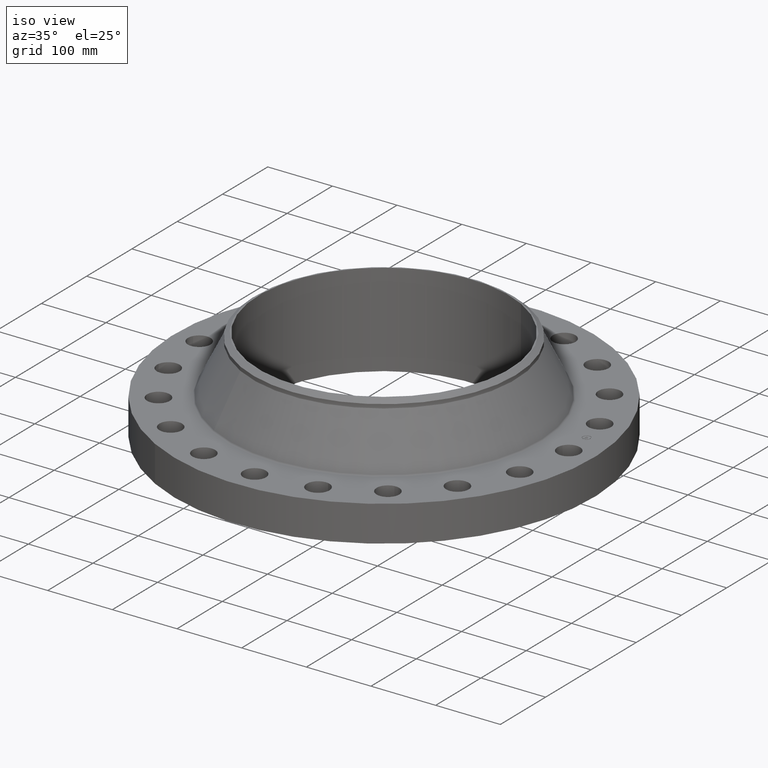
[diagram: clean part render]
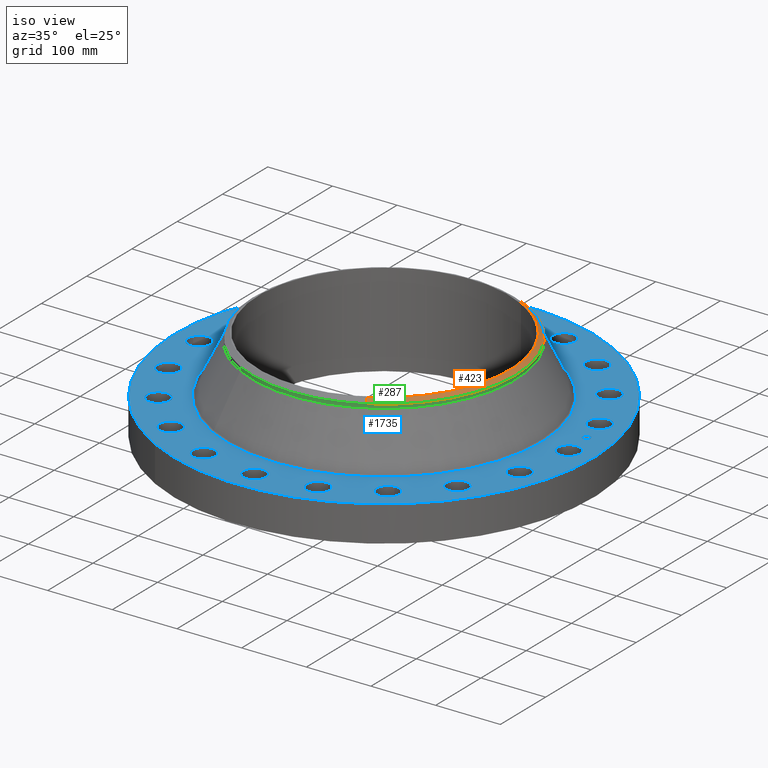
[diagram: same view with three faces highlighted in distinct colors, each labeled with its STEP entity id]
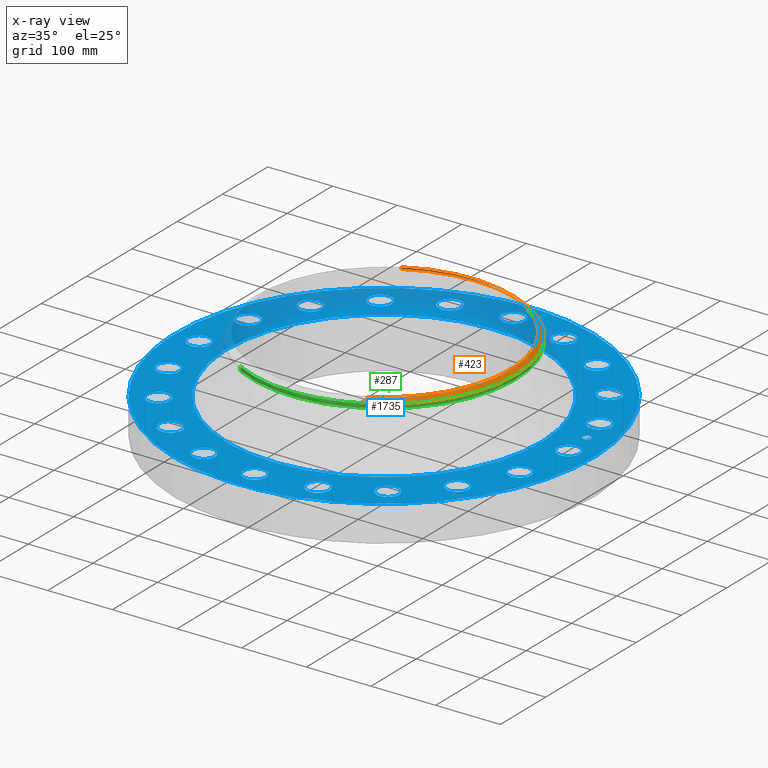
[diagram: x-ray of the same camera — body ghosted, the three highlighted faces saturated]
A machine part, iso view with three faces highlighted in distinct colors.
The next image is the same camera in x-ray (body ghosted, the three faces saturated) — at least one of them is partly hidden behind the body in this view.
Their STEP definitions:

[orange] entity #423 — the highlighted conical surface has half-angle 52.5 deg.
#270=AXIS2_PLACEMENT_3D('Circle Axis2P3D',#268,#269,$) ;
#297=AXIS2_PLACEMENT_3D('Circle Axis2P3D',#295,#296,$) ;
#311=AXIS2_PLACEMENT_3D('Cone Axis2P3D',#308,#309,#310) ;
#404=AXIS2_PLACEMENT_3D('Circle Axis2P3D',#402,#403,$) ;
#265=CARTESIAN_POINT('Vertex',(3.83540430885,7.02066049515,5.4626718274)) ;
#268=CARTESIAN_POINT('Axis2P3D Location',(0.,0.,5.4626718274)) ;
#272=CARTESIAN_POINT('Vertex',(3.83540430885,-7.02066049515,5.4626718274)) ;
#292=CARTESIAN_POINT('Vertex',(-3.83540430885,7.02066049515,5.4626718274)) ;
#295=CARTESIAN_POINT('Axis2P3D Location',(0.,0.,5.4626718274)) ;
#308=CARTESIAN_POINT('Axis2P3D Location',(0.,0.,5.69000000002)) ;
#313=CARTESIAN_POINT('Line Origine',(3.76438704157,-6.89066425936,5.57633591371)) ;
#317=CARTESIAN_POINT('Vertex',(3.69336977428,-6.76066802357,5.69000000002)) ;
#324=CARTESIAN_POINT('Vertex',(-3.69336977428,6.76066802357,5.69000000002)) ;
#327=CARTESIAN_POINT('Line Origine',(-3.76438704157,6.89066425936,5.57633591371)) ;
#402=CARTESIAN_POINT('Axis2P3D Location',(0.,0.,5.69000000002)) ;
#269=DIRECTION('Axis2P3D Direction',(0.,0.,-0.0393700787402)) ;
#296=DIRECTION('Axis2P3D Direction',(0.,0.,-0.0393700787402)) ;
#309=DIRECTION('Axis2P3D Direction',(-0.,-0.,-0.0393700787402)) ;
#310=DIRECTION('Axis2P3D XDirection',(-0.0188750212049,0.0345504945626,0.)) ;
#314=DIRECTION('Vector Direction',(0.014974561121,-0.02741075027,-0.023966985394)) ;
#328=DIRECTION('Vector Direction',(-0.014974561121,0.02741075027,-0.023966985394)) ;
#403=DIRECTION('Axis2P3D Direction',(0.,0.,-0.0393700787402)) ;
#315=VECTOR('Line Direction',#314,0.0393700787402) ;
#329=VECTOR('Line Direction',#328,0.0393700787402) ;
#417=ORIENTED_EDGE('',*,*,#331,.F.) ;
#418=ORIENTED_EDGE('',*,*,#406,.F.) ;
#419=ORIENTED_EDGE('',*,*,#319,.T.) ;
#420=ORIENTED_EDGE('',*,*,#274,.T.) ;
#421=ORIENTED_EDGE('',*,*,#299,.F.) ;
#423=ADVANCED_FACE('PartBody',(#422),#312,.T.) ;
#271=CIRCLE('generated circle',#270,8.00000000003) ;
#298=CIRCLE('generated circle',#297,8.00000000003) ;
#405=CIRCLE('generated circle',#404,7.70374015751) ;
#312=CONICAL_SURFACE('Cone',#311,7.70374015751,0.916297857297) ;
#274=EDGE_CURVE('',#273,#266,#271,.F.) ;
#299=EDGE_CURVE('',#293,#266,#298,.T.) ;
#319=EDGE_CURVE('',#318,#273,#316,.T.) ;
#331=EDGE_CURVE('',#325,#293,#330,.T.) ;
#406=EDGE_CURVE('',#318,#325,#405,.F.) ;
#416=EDGE_LOOP('',(#417,#418,#419,#420,#421)) ;
#422=FACE_OUTER_BOUND('',#416,.T.) ;
#316=LINE('Line',#313,#315) ;
#330=LINE('Line',#327,#329) ;
#266=VERTEX_POINT('',#265) ;
#273=VERTEX_POINT('',#272) ;
#293=VERTEX_POINT('',#292) ;
#318=VERTEX_POINT('',#317) ;
#325=VERTEX_POINT('',#324) ;

[blue] entity #1735 — the highlighted planar face has unit normal (0, 0, -1).
#65=AXIS2_PLACEMENT_3D('Circle Axis2P3D',#63,#64,$) ;
#82=AXIS2_PLACEMENT_3D('Circle Axis2P3D',#80,#81,$) ;
#115=AXIS2_PLACEMENT_3D('Circle Axis2P3D',#113,#114,$) ;
#139=AXIS2_PLACEMENT_3D('Circle Axis2P3D',#137,#138,$) ;
#156=AXIS2_PLACEMENT_3D('Circle Axis2P3D',#154,#155,$) ;
#191=AXIS2_PLACEMENT_3D('Circle Axis2P3D',#189,#190,$) ;
#828=AXIS2_PLACEMENT_3D('Circle Axis2P3D',#826,#827,$) ;
#840=AXIS2_PLACEMENT_3D('Circle Axis2P3D',#838,#839,$) ;
#871=AXIS2_PLACEMENT_3D('Circle Axis2P3D',#869,#870,$) ;
#883=AXIS2_PLACEMENT_3D('Circle Axis2P3D',#881,#882,$) ;
#914=AXIS2_PLACEMENT_3D('Circle Axis2P3D',#912,#913,$) ;
#926=AXIS2_PLACEMENT_3D('Circle Axis2P3D',#924,#925,$) ;
#957=AXIS2_PLACEMENT_3D('Circle Axis2P3D',#955,#956,$) ;
#969=AXIS2_PLACEMENT_3D('Circle Axis2P3D',#967,#968,$) ;
#1000=AXIS2_PLACEMENT_3D('Circle Axis2P3D',#998,#999,$) ;
#1012=AXIS2_PLACEMENT_3D('Circle Axis2P3D',#1010,#1011,$) ;
#1043=AXIS2_PLACEMENT_3D('Circle Axis2P3D',#1041,#1042,$) ;
#1055=AXIS2_PLACEMENT_3D('Circle Axis2P3D',#1053,#1054,$) ;
#1086=AXIS2_PLACEMENT_3D('Circle Axis2P3D',#1084,#1085,$) ;
#1098=AXIS2_PLACEMENT_3D('Circle Axis2P3D',#1096,#1097,$) ;
#1129=AXIS2_PLACEMENT_3D('Circle Axis2P3D',#1127,#1128,$) ;
#1141=AXIS2_PLACEMENT_3D('Circle Axis2P3D',#1139,#1140,$) ;
#1172=AXIS2_PLACEMENT_3D('Circle Axis2P3D',#1170,#1171,$) ;
#1184=AXIS2_PLACEMENT_3D('Circle Axis2P3D',#1182,#1183,$) ;
#1215=AXIS2_PLACEMENT_3D('Circle Axis2P3D',#1213,#1214,$) ;
#1227=AXIS2_PLACEMENT_3D('Circle Axis2P3D',#1225,#1226,$) ;
#1258=AXIS2_PLACEMENT_3D('Circle Axis2P3D',#1256,#1257,$) ;
#1270=AXIS2_PLACEMENT_3D('Circle Axis2P3D',#1268,#1269,$) ;
#1301=AXIS2_PLACEMENT_3D('Circle Axis2P3D',#1299,#1300,$) ;
#1313=AXIS2_PLACEMENT_3D('Circle Axis2P3D',#1311,#1312,$) ;
#1344=AXIS2_PLACEMENT_3D('Circle Axis2P3D',#1342,#1343,$) ;
#1356=AXIS2_PLACEMENT_3D('Circle Axis2P3D',#1354,#1355,$) ;
#1387=AXIS2_PLACEMENT_3D('Circle Axis2P3D',#1385,#1386,$) ;
#1399=AXIS2_PLACEMENT_3D('Circle Axis2P3D',#1397,#1398,$) ;
#1430=AXIS2_PLACEMENT_3D('Circle Axis2P3D',#1428,#1429,$) ;
#1442=AXIS2_PLACEMENT_3D('Circle Axis2P3D',#1440,#1441,$) ;
#1473=AXIS2_PLACEMENT_3D('Circle Axis2P3D',#1471,#1472,$) ;
#1485=AXIS2_PLACEMENT_3D('Circle Axis2P3D',#1483,#1484,$) ;
#1516=AXIS2_PLACEMENT_3D('Circle Axis2P3D',#1514,#1515,$) ;
#1528=AXIS2_PLACEMENT_3D('Circle Axis2P3D',#1526,#1527,$) ;
#1559=AXIS2_PLACEMENT_3D('Circle Axis2P3D',#1557,#1558,$) ;
#1571=AXIS2_PLACEMENT_3D('Circle Axis2P3D',#1569,#1570,$) ;
#1602=AXIS2_PLACEMENT_3D('Circle Axis2P3D',#1600,#1601,$) ;
#1614=AXIS2_PLACEMENT_3D('Circle Axis2P3D',#1612,#1613,$) ;
#1627=AXIS2_PLACEMENT_3D('Plane Axis2P3D',#1624,#1625,#1626) ;
#1719=AXIS2_PLACEMENT_3D('Circle Axis2P3D',#1717,#1718,$) ;
#1728=AXIS2_PLACEMENT_3D('Circle Axis2P3D',#1726,#1727,$) ;
#46=CARTESIAN_POINT('Vertex',(10.6444680323,0.330803621638,2.19000000001)) ;
#60=CARTESIAN_POINT('Vertex',(11.8555319678,-0.330803621638,2.19000000001)) ;
#63=CARTESIAN_POINT('Axis2P3D Location',(11.25,0.,2.19000000001)) ;
#80=CARTESIAN_POINT('Axis2P3D Location',(11.25,0.,2.19000000001)) ;
#110=CARTESIAN_POINT('Vertex',(-6.11267561723,-11.1891776641,2.19000000001)) ;
#113=CARTESIAN_POINT('Axis2P3D Location',(0.,0.,2.19000000001)) ;
#117=CARTESIAN_POINT('Vertex',(6.11267561723,11.1891776641,2.19000000001)) ;
#137=CARTESIAN_POINT('Axis2P3D Location',(0.,0.,2.19000000001)) ;
#154=CARTESIAN_POINT('Axis2P3D Location',(0.,0.,2.19000000001)) ;
#158=CARTESIAN_POINT('Vertex',(4.59029040078,8.40247021772,2.19000000001)) ;
#160=CARTESIAN_POINT('Vertex',(-4.59029040078,-8.40247021772,2.19000000001)) ;
#189=CARTESIAN_POINT('Axis2P3D Location',(0.,0.,2.19000000001)) ;
#816=CARTESIAN_POINT('Vertex',(-10.2257146255,2.9747085781,2.19000000001)) ;
#823=CARTESIAN_POINT('Vertex',(-11.1730569912,3.97817379536,2.19000000001)) ;
#826=CARTESIAN_POINT('Axis2P3D Location',(-10.6993858084,3.47644118673,2.19000000001)) ;
#838=CARTESIAN_POINT('Axis2P3D Location',(-10.6993858084,3.47644118673,2.19000000001)) ;
#859=CARTESIAN_POINT('Vertex',(8.80599702445,-5.9890355762,2.19000000001)) ;
#866=CARTESIAN_POINT('Vertex',(9.39688534906,-7.23613260043,2.19000000001)) ;
#869=CARTESIAN_POINT('Axis2P3D Location',(9.10144118675,-6.61258408832,2.19000000001)) ;
#881=CARTESIAN_POINT('Axis2P3D Location',(9.10144118675,-6.61258408832,2.19000000001)) ;
#902=CARTESIAN_POINT('Vertex',(-8.80599702445,5.9890355762,2.19000000001)) ;
#909=CARTESIAN_POINT('Vertex',(-9.39688534906,7.23613260043,2.19000000001)) ;
#912=CARTESIAN_POINT('Axis2P3D Location',(-9.10144118675,6.61258408832,2.19000000001)) ;
#924=CARTESIAN_POINT('Axis2P3D Location',(-9.10144118675,6.61258408832,2.19000000001)) ;
#945=CARTESIAN_POINT('Vertex',(6.52428707961,-8.41711404404,2.19000000001)) ;
#952=CARTESIAN_POINT('Vertex',(6.70088109702,-9.78576832947,2.19000000001)) ;
#955=CARTESIAN_POINT('Axis2P3D Location',(6.61258408832,-9.10144118675,2.19000000001)) ;
#967=CARTESIAN_POINT('Axis2P3D Location',(6.61258408832,-9.10144118675,2.19000000001)) ;
#988=CARTESIAN_POINT('Vertex',(-6.52428707961,8.41711404404,2.19000000001)) ;
#995=CARTESIAN_POINT('Vertex',(-6.70088109702,9.78576832947,2.19000000001)) ;
#998=CARTESIAN_POINT('Axis2P3D Location',(-6.61258408832,9.10144118675,2.19000000001)) ;
#1010=CARTESIAN_POINT('Axis2P3D Location',(-6.61258408832,9.10144118675,2.19000000001)) ;
#1031=CARTESIAN_POINT('Vertex',(3.60393445805,-10.0212667438,2.19000000001)) ;
#1038=CARTESIAN_POINT('Vertex',(3.34894791542,-11.377504873,2.19000000001)) ;
#1041=CARTESIAN_POINT('Axis2P3D Location',(3.47644118673,-10.6993858084,2.19000000001)) ;
#1053=CARTESIAN_POINT('Axis2P3D Location',(3.47644118673,-10.6993858084,2.19000000001)) ;
#1074=CARTESIAN_POINT('Vertex',(-3.60393445805,10.0212667438,2.19000000001)) ;
#1081=CARTESIAN_POINT('Vertex',(-3.34894791542,11.377504873,2.19000000001)) ;
#1084=CARTESIAN_POINT('Axis2P3D Location',(-3.47644118673,10.6993858084,2.19000000001)) ;
#1096=CARTESIAN_POINT('Axis2P3D Location',(-3.47644118673,10.6993858084,2.19000000001)) ;
#1117=CARTESIAN_POINT('Vertex',(0.330803621638,-10.6444680323,2.19000000001)) ;
#1124=CARTESIAN_POINT('Vertex',(-0.330803621638,-11.8555319678,2.19000000001)) ;
#1127=CARTESIAN_POINT('Axis2P3D Location',(9.4893575353E-016,-11.25,2.19000000001)) ;
#1139=CARTESIAN_POINT('Axis2P3D Location',(9.4893575353E-016,-11.25,2.19000000001)) ;
#1160=CARTESIAN_POINT('Vertex',(-0.330803621638,10.6444680323,2.19000000001)) ;
#1167=CARTESIAN_POINT('Vertex',(0.330803621638,11.8555319678,2.19000000001)) ;
#1170=CARTESIAN_POINT('Axis2P3D Location',(-9.82066881883E-015,11.25,2.19000000001)) ;
#1182=CARTESIAN_POINT('Axis2P3D Location',(-9.82066881883E-015,11.25,2.19000000001)) ;
#1203=CARTESIAN_POINT('Vertex',(-2.9747085781,-10.2257146255,2.19000000001)) ;
#1210=CARTESIAN_POINT('Vertex',(-3.97817379536,-11.1730569912,2.19000000001)) ;
#1213=CARTESIAN_POINT('Axis2P3D Location',(-3.47644118673,-10.6993858084,2.19000000001)) ;
#1225=CARTESIAN_POINT('Axis2P3D Location',(-3.47644118673,-10.6993858084,2.19000000001)) ;
#1246=CARTESIAN_POINT('Vertex',(2.9747085781,10.2257146255,2.19000000001)) ;
#1253=CARTESIAN_POINT('Vertex',(3.97817379536,11.1730569912,2.19000000001)) ;
#1256=CARTESIAN_POINT('Axis2P3D Location',(3.47644118673,10.6993858084,2.19000000001)) ;
#1268=CARTESIAN_POINT('Axis2P3D Location',(3.47644118673,10.6993858084,2.19000000001)) ;
#1289=CARTESIAN_POINT('Vertex',(-5.9890355762,-8.80599702445,2.19000000001)) ;
#1296=CARTESIAN_POINT('Vertex',(-7.23613260043,-9.39688534906,2.19000000001)) ;
#1299=CARTESIAN_POINT('Axis2P3D Location',(-6.61258408832,-9.10144118675,2.19000000001)) ;
#1311=CARTESIAN_POINT('Axis2P3D Location',(-6.61258408832,-9.10144118675,2.19000000001)) ;
#1332=CARTESIAN_POINT('Vertex',(5.9890355762,8.80599702445,2.19000000001)) ;
#1339=CARTESIAN_POINT('Vertex',(7.23613260043,9.39688534906,2.19000000001)) ;
#1342=CARTESIAN_POINT('Axis2P3D Location',(6.61258408832,9.10144118675,2.19000000001)) ;
#1354=CARTESIAN_POINT('Axis2P3D Location',(6.61258408832,9.10144118675,2.19000000001)) ;
#1375=CARTESIAN_POINT('Vertex',(-8.41711404404,-6.52428707961,2.19000000001)) ;
#1382=CARTESIAN_POINT('Vertex',(-9.78576832947,-6.70088109702,2.19000000001)) ;
#1385=CARTESIAN_POINT('Axis2P3D Location',(-9.10144118675,-6.61258408832,2.19000000001)) ;
#1397=CARTESIAN_POINT('Axis2P3D Location',(-9.10144118675,-6.61258408832,2.19000000001)) ;
#1418=CARTESIAN_POINT('Vertex',(8.41711404404,6.52428707961,2.19000000001)) ;
#1425=CARTESIAN_POINT('Vertex',(9.78576832947,6.70088109702,2.19000000001)) ;
#1428=CARTESIAN_POINT('Axis2P3D Location',(9.10144118675,6.61258408832,2.19000000001)) ;
#1440=CARTESIAN_POINT('Axis2P3D Location',(9.10144118675,6.61258408832,2.19000000001)) ;
#1461=CARTESIAN_POINT('Vertex',(-10.0212667438,-3.60393445805,2.19000000001)) ;
#1468=CARTESIAN_POINT('Vertex',(-11.377504873,-3.34894791542,2.19000000001)) ;
#1471=CARTESIAN_POINT('Axis2P3D Location',(-10.6993858084,-3.47644118673,2.19000000001)) ;
#1483=CARTESIAN_POINT('Axis2P3D Location',(-10.6993858084,-3.47644118673,2.19000000001)) ;
#1504=CARTESIAN_POINT('Vertex',(10.0212667438,3.60393445805,2.19000000001)) ;
#1511=CARTESIAN_POINT('Vertex',(11.377504873,3.34894791542,2.19000000001)) ;
#1514=CARTESIAN_POINT('Axis2P3D Location',(10.6993858084,3.47644118673,2.19000000001)) ;
#1526=CARTESIAN_POINT('Axis2P3D Location',(10.6993858084,3.47644118673,2.19000000001)) ;
#1547=CARTESIAN_POINT('Vertex',(-10.6444680323,-0.330803621638,2.19000000001)) ;
#1554=CARTESIAN_POINT('Vertex',(-11.8555319678,0.330803621638,2.19000000001)) ;
#1557=CARTESIAN_POINT('Axis2P3D Location',(-11.25,-6.37373125988E-015,2.19000000001)) ;
#1569=CARTESIAN_POINT('Axis2P3D Location',(-11.25,-6.37373125988E-015,2.19000000001)) ;
#1590=CARTESIAN_POINT('Vertex',(10.2257146255,-2.9747085781,2.19000000001)) ;
#1597=CARTESIAN_POINT('Vertex',(11.1730569912,-3.97817379536,2.19000000001)) ;
#1600=CARTESIAN_POINT('Axis2P3D Location',(10.6993858084,-3.47644118673,2.19000000001)) ;
#1612=CARTESIAN_POINT('Axis2P3D Location',(10.6993858084,-3.47644118673,2.19000000001)) ;
#1624=CARTESIAN_POINT('Axis2P3D Location',(0.,12.7500000001,2.19000000001)) ;
#1717=CARTESIAN_POINT('Axis2P3D Location',(11.1114938317,1.75988773171,2.19000000001)) ;
#1721=CARTESIAN_POINT('Vertex',(11.0727763016,2.00434059601,2.19000000001)) ;
#1723=CARTESIAN_POINT('Vertex',(11.1502113618,1.51543486741,2.19000000001)) ;
#1726=CARTESIAN_POINT('Axis2P3D Location',(11.1114938317,1.75988773171,2.19000000001)) ;
#64=DIRECTION('Axis2P3D Direction',(0.,-0.,-0.0393700787402)) ;
#81=DIRECTION('Axis2P3D Direction',(0.,-0.,-0.0393700787402)) ;
#114=DIRECTION('Axis2P3D Direction',(0.,0.,-0.0393700787402)) ;
#138=DIRECTION('Axis2P3D Direction',(0.,0.,-0.0393700787402)) ;
#155=DIRECTION('Axis2P3D Direction',(0.,0.,-0.0393700787402)) ;
#190=DIRECTION('Axis2P3D Direction',(0.,0.,-0.0393700787402)) ;
#827=DIRECTION('Axis2P3D Direction',(0.,0.,-0.0393700787402)) ;
#839=DIRECTION('Axis2P3D Direction',(0.,0.,-0.0393700787402)) ;
#870=DIRECTION('Axis2P3D Direction',(0.,-0.,-0.0393700787402)) ;
#882=DIRECTION('Axis2P3D Direction',(0.,-0.,-0.0393700787402)) ;
#913=DIRECTION('Axis2P3D Direction',(0.,0.,-0.0393700787402)) ;
#925=DIRECTION('Axis2P3D Direction',(0.,0.,-0.0393700787402)) ;
#956=DIRECTION('Axis2P3D Direction',(0.,-0.,-0.0393700787402)) ;
#968=DIRECTION('Axis2P3D Direction',(0.,-0.,-0.0393700787402)) ;
#999=DIRECTION('Axis2P3D Direction',(0.,0.,-0.0393700787402)) ;
#1011=DIRECTION('Axis2P3D Direction',(0.,0.,-0.0393700787402)) ;
#1042=DIRECTION('Axis2P3D Direction',(0.,-0.,-0.0393700787402)) ;
#1054=DIRECTION('Axis2P3D Direction',(0.,-0.,-0.0393700787402)) ;
#1085=DIRECTION('Axis2P3D Direction',(0.,0.,-0.0393700787402)) ;
#1097=DIRECTION('Axis2P3D Direction',(0.,0.,-0.0393700787402)) ;
#1128=DIRECTION('Axis2P3D Direction',(0.,-0.,-0.0393700787402)) ;
#1140=DIRECTION('Axis2P3D Direction',(0.,-0.,-0.0393700787402)) ;
#1171=DIRECTION('Axis2P3D Direction',(0.,0.,-0.0393700787402)) ;
#1183=DIRECTION('Axis2P3D Direction',(0.,0.,-0.0393700787402)) ;
#1214=DIRECTION('Axis2P3D Direction',(-0.,0.,-0.0393700787402)) ;
#1226=DIRECTION('Axis2P3D Direction',(-0.,0.,-0.0393700787402)) ;
#1257=DIRECTION('Axis2P3D Direction',(0.,0.,-0.0393700787402)) ;
#1269=DIRECTION('Axis2P3D Direction',(0.,0.,-0.0393700787402)) ;
#1300=DIRECTION('Axis2P3D Direction',(-0.,0.,-0.0393700787402)) ;
#1312=DIRECTION('Axis2P3D Direction',(-0.,0.,-0.0393700787402)) ;
#1343=DIRECTION('Axis2P3D Direction',(0.,0.,-0.0393700787402)) ;
#1355=DIRECTION('Axis2P3D Direction',(0.,0.,-0.0393700787402)) ;
#1386=DIRECTION('Axis2P3D Direction',(-0.,0.,-0.0393700787402)) ;
#1398=DIRECTION('Axis2P3D Direction',(-0.,0.,-0.0393700787402)) ;
#1429=DIRECTION('Axis2P3D Direction',(0.,0.,-0.0393700787402)) ;
#1441=DIRECTION('Axis2P3D Direction',(0.,0.,-0.0393700787402)) ;
#1472=DIRECTION('Axis2P3D Direction',(-0.,0.,-0.0393700787402)) ;
#1484=DIRECTION('Axis2P3D Direction',(-0.,0.,-0.0393700787402)) ;
#1515=DIRECTION('Axis2P3D Direction',(0.,0.,-0.0393700787402)) ;
#1527=DIRECTION('Axis2P3D Direction',(0.,0.,-0.0393700787402)) ;
#1558=DIRECTION('Axis2P3D Direction',(-0.,0.,-0.0393700787402)) ;
#1570=DIRECTION('Axis2P3D Direction',(-0.,0.,-0.0393700787402)) ;
#1601=DIRECTION('Axis2P3D Direction',(0.,-0.,-0.0393700787402)) ;
#1613=DIRECTION('Axis2P3D Direction',(0.,-0.,-0.0393700787402)) ;
#1625=DIRECTION('Axis2P3D Direction',(0.,0.,-0.0393700787402)) ;
#1626=DIRECTION('Axis2P3D XDirection',(0.0393700787402,0.,0.)) ;
#1718=DIRECTION('Axis2P3D Direction',(0.,0.,-0.0393700787402)) ;
#1727=DIRECTION('Axis2P3D Direction',(0.,0.,-0.0393700787402)) ;
#1630=ORIENTED_EDGE('',*,*,#141,.F.) ;
#1631=ORIENTED_EDGE('',*,*,#119,.F.) ;
#1634=ORIENTED_EDGE('',*,*,#67,.T.) ;
#1635=ORIENTED_EDGE('',*,*,#84,.T.) ;
#1638=ORIENTED_EDGE('',*,*,#193,.T.) ;
#1639=ORIENTED_EDGE('',*,*,#162,.T.) ;
#1642=ORIENTED_EDGE('',*,*,#1616,.T.) ;
#1643=ORIENTED_EDGE('',*,*,#1604,.T.) ;
#1646=ORIENTED_EDGE('',*,*,#885,.T.) ;
#1647=ORIENTED_EDGE('',*,*,#873,.T.) ;
#1650=ORIENTED_EDGE('',*,*,#971,.T.) ;
#1651=ORIENTED_EDGE('',*,*,#959,.T.) ;
#1654=ORIENTED_EDGE('',*,*,#1057,.T.) ;
#1655=ORIENTED_EDGE('',*,*,#1045,.T.) ;
#1658=ORIENTED_EDGE('',*,*,#1143,.T.) ;
#1659=ORIENTED_EDGE('',*,*,#1131,.T.) ;
#1662=ORIENTED_EDGE('',*,*,#1229,.T.) ;
#1663=ORIENTED_EDGE('',*,*,#1217,.T.) ;
#1666=ORIENTED_EDGE('',*,*,#1315,.T.) ;
#1667=ORIENTED_EDGE('',*,*,#1303,.T.) ;
#1670=ORIENTED_EDGE('',*,*,#1401,.T.) ;
#1671=ORIENTED_EDGE('',*,*,#1389,.T.) ;
#1674=ORIENTED_EDGE('',*,*,#1487,.T.) ;
#1675=ORIENTED_EDGE('',*,*,#1475,.T.) ;
#1678=ORIENTED_EDGE('',*,*,#1573,.T.) ;
#1679=ORIENTED_EDGE('',*,*,#1561,.T.) ;
#1682=ORIENTED_EDGE('',*,*,#842,.T.) ;
#1683=ORIENTED_EDGE('',*,*,#830,.T.) ;
#1686=ORIENTED_EDGE('',*,*,#928,.T.) ;
#1687=ORIENTED_EDGE('',*,*,#916,.T.) ;
#1690=ORIENTED_EDGE('',*,*,#1014,.T.) ;
#1691=ORIENTED_EDGE('',*,*,#1002,.T.) ;
#1694=ORIENTED_EDGE('',*,*,#1100,.T.) ;
#1695=ORIENTED_EDGE('',*,*,#1088,.T.) ;
#1698=ORIENTED_EDGE('',*,*,#1186,.T.) ;
#1699=ORIENTED_EDGE('',*,*,#1174,.T.) ;
#1702=ORIENTED_EDGE('',*,*,#1272,.T.) ;
#1703=ORIENTED_EDGE('',*,*,#1260,.T.) ;
#1706=ORIENTED_EDGE('',*,*,#1358,.T.) ;
#1707=ORIENTED_EDGE('',*,*,#1346,.T.) ;
#1710=ORIENTED_EDGE('',*,*,#1444,.T.) ;
#1711=ORIENTED_EDGE('',*,*,#1432,.T.) ;
#1714=ORIENTED_EDGE('',*,*,#1530,.T.) ;
#1715=ORIENTED_EDGE('',*,*,#1518,.T.) ;
#1732=ORIENTED_EDGE('',*,*,#1725,.T.) ;
#1733=ORIENTED_EDGE('',*,*,#1730,.T.) ;
#1636=FACE_BOUND('',#1633,.T.) ;
#1640=FACE_BOUND('',#1637,.T.) ;
#1644=FACE_BOUND('',#1641,.T.) ;
#1648=FACE_BOUND('',#1645,.T.) ;
#1652=FACE_BOUND('',#1649,.T.) ;
#1656=FACE_BOUND('',#1653,.T.) ;
#1660=FACE_BOUND('',#1657,.T.) ;
#1664=FACE_BOUND('',#1661,.T.) ;
#1668=FACE_BOUND('',#1665,.T.) ;
#1672=FACE_BOUND('',#1669,.T.) ;
#1676=FACE_BOUND('',#1673,.T.) ;
#1680=FACE_BOUND('',#1677,.T.) ;
#1684=FACE_BOUND('',#1681,.T.) ;
#1688=FACE_BOUND('',#1685,.T.) ;
#1692=FACE_BOUND('',#1689,.T.) ;
#1696=FACE_BOUND('',#1693,.T.) ;
#1700=FACE_BOUND('',#1697,.T.) ;
#1704=FACE_BOUND('',#1701,.T.) ;
#1708=FACE_BOUND('',#1705,.T.) ;
#1712=FACE_BOUND('',#1709,.T.) ;
#1716=FACE_BOUND('',#1713,.T.) ;
#1734=FACE_BOUND('',#1731,.T.) ;
#1735=ADVANCED_FACE('PartBody',(#1632,#1636,#1640,#1644,#1648,#1652,#1656,#1660,#1664,#1668,#1672,#1676,#1680,#1684,#1688,#1692,#1696,#1700,#1704,#1708,#1712,#1716,#1734),#1628,.F.) ;
#66=CIRCLE('generated circle',#65,0.690000000003) ;
#83=CIRCLE('generated circle',#82,0.690000000003) ;
#116=CIRCLE('generated circle',#115,12.7500000001) ;
#140=CIRCLE('generated circle',#139,12.7500000001) ;
#157=CIRCLE('generated circle',#156,9.57456378762) ;
#192=CIRCLE('generated circle',#191,9.57456378762) ;
#829=CIRCLE('generated circle',#828,0.690000000003) ;
#841=CIRCLE('generated circle',#840,0.690000000003) ;
#872=CIRCLE('generated circle',#871,0.690000000003) ;
#884=CIRCLE('generated circle',#883,0.690000000003) ;
#915=CIRCLE('generated circle',#914,0.690000000003) ;
#927=CIRCLE('generated circle',#926,0.690000000003) ;
#958=CIRCLE('generated circle',#957,0.690000000003) ;
#970=CIRCLE('generated circle',#969,0.690000000003) ;
#1001=CIRCLE('generated circle',#1000,0.690000000003) ;
#1013=CIRCLE('generated circle',#1012,0.690000000003) ;
#1044=CIRCLE('generated circle',#1043,0.690000000003) ;
#1056=CIRCLE('generated circle',#1055,0.690000000003) ;
#1087=CIRCLE('generated circle',#1086,0.690000000003) ;
#1099=CIRCLE('generated circle',#1098,0.690000000003) ;
#1130=CIRCLE('generated circle',#1129,0.690000000003) ;
#1142=CIRCLE('generated circle',#1141,0.690000000003) ;
#1173=CIRCLE('generated circle',#1172,0.690000000003) ;
#1185=CIRCLE('generated circle',#1184,0.690000000003) ;
#1216=CIRCLE('generated circle',#1215,0.690000000003) ;
#1228=CIRCLE('generated circle',#1227,0.690000000003) ;
#1259=CIRCLE('generated circle',#1258,0.690000000003) ;
#1271=CIRCLE('generated circle',#1270,0.690000000003) ;
#1302=CIRCLE('generated circle',#1301,0.690000000003) ;
#1314=CIRCLE('generated circle',#1313,0.690000000003) ;
#1345=CIRCLE('generated circle',#1344,0.690000000003) ;
#1357=CIRCLE('generated circle',#1356,0.690000000003) ;
#1388=CIRCLE('generated circle',#1387,0.690000000003) ;
#1400=CIRCLE('generated circle',#1399,0.690000000003) ;
#1431=CIRCLE('generated circle',#1430,0.690000000003) ;
#1443=CIRCLE('generated circle',#1442,0.690000000003) ;
#1474=CIRCLE('generated circle',#1473,0.690000000003) ;
#1486=CIRCLE('generated circle',#1485,0.690000000003) ;
#1517=CIRCLE('generated circle',#1516,0.690000000003) ;
#1529=CIRCLE('generated circle',#1528,0.690000000003) ;
#1560=CIRCLE('generated circle',#1559,0.690000000003) ;
#1572=CIRCLE('generated circle',#1571,0.690000000003) ;
#1603=CIRCLE('generated circle',#1602,0.690000000003) ;
#1615=CIRCLE('generated circle',#1614,0.690000000003) ;
#1720=CIRCLE('generated circle',#1719,0.247500000001) ;
#1729=CIRCLE('generated circle',#1728,0.247500000001) ;
#67=EDGE_CURVE('',#47,#61,#66,.T.) ;
#84=EDGE_CURVE('',#61,#47,#83,.T.) ;
#119=EDGE_CURVE('',#111,#118,#116,.T.) ;
#141=EDGE_CURVE('',#118,#111,#140,.T.) ;
#162=EDGE_CURVE('',#159,#161,#157,.T.) ;
#193=EDGE_CURVE('',#161,#159,#192,.T.) ;
#830=EDGE_CURVE('',#817,#824,#829,.T.) ;
#842=EDGE_CURVE('',#824,#817,#841,.T.) ;
#873=EDGE_CURVE('',#860,#867,#872,.T.) ;
#885=EDGE_CURVE('',#867,#860,#884,.T.) ;
#916=EDGE_CURVE('',#903,#910,#915,.T.) ;
#928=EDGE_CURVE('',#910,#903,#927,.T.) ;
#959=EDGE_CURVE('',#946,#953,#958,.T.) ;
#971=EDGE_CURVE('',#953,#946,#970,.T.) ;
#1002=EDGE_CURVE('',#989,#996,#1001,.T.) ;
#1014=EDGE_CURVE('',#996,#989,#1013,.T.) ;
#1045=EDGE_CURVE('',#1032,#1039,#1044,.T.) ;
#1057=EDGE_CURVE('',#1039,#1032,#1056,.T.) ;
#1088=EDGE_CURVE('',#1075,#1082,#1087,.T.) ;
#1100=EDGE_CURVE('',#1082,#1075,#1099,.T.) ;
#1131=EDGE_CURVE('',#1118,#1125,#1130,.T.) ;
#1143=EDGE_CURVE('',#1125,#1118,#1142,.T.) ;
#1174=EDGE_CURVE('',#1161,#1168,#1173,.T.) ;
#1186=EDGE_CURVE('',#1168,#1161,#1185,.T.) ;
#1217=EDGE_CURVE('',#1204,#1211,#1216,.T.) ;
#1229=EDGE_CURVE('',#1211,#1204,#1228,.T.) ;
#1260=EDGE_CURVE('',#1247,#1254,#1259,.T.) ;
#1272=EDGE_CURVE('',#1254,#1247,#1271,.T.) ;
#1303=EDGE_CURVE('',#1290,#1297,#1302,.T.) ;
#1315=EDGE_CURVE('',#1297,#1290,#1314,.T.) ;
#1346=EDGE_CURVE('',#1333,#1340,#1345,.T.) ;
#1358=EDGE_CURVE('',#1340,#1333,#1357,.T.) ;
#1389=EDGE_CURVE('',#1376,#1383,#1388,.T.) ;
#1401=EDGE_CURVE('',#1383,#1376,#1400,.T.) ;
#1432=EDGE_CURVE('',#1419,#1426,#1431,.T.) ;
#1444=EDGE_CURVE('',#1426,#1419,#1443,.T.) ;
#1475=EDGE_CURVE('',#1462,#1469,#1474,.T.) ;
#1487=EDGE_CURVE('',#1469,#1462,#1486,.T.) ;
#1518=EDGE_CURVE('',#1505,#1512,#1517,.T.) ;
#1530=EDGE_CURVE('',#1512,#1505,#1529,.T.) ;
#1561=EDGE_CURVE('',#1548,#1555,#1560,.T.) ;
#1573=EDGE_CURVE('',#1555,#1548,#1572,.T.) ;
#1604=EDGE_CURVE('',#1591,#1598,#1603,.T.) ;
#1616=EDGE_CURVE('',#1598,#1591,#1615,.T.) ;
#1725=EDGE_CURVE('',#1722,#1724,#1720,.T.) ;
#1730=EDGE_CURVE('',#1724,#1722,#1729,.T.) ;
#1629=EDGE_LOOP('',(#1630,#1631)) ;
#1633=EDGE_LOOP('',(#1634,#1635)) ;
#1637=EDGE_LOOP('',(#1638,#1639)) ;
#1641=EDGE_LOOP('',(#1642,#1643)) ;
#1645=EDGE_LOOP('',(#1646,#1647)) ;
#1649=EDGE_LOOP('',(#1650,#1651)) ;
#1653=EDGE_LOOP('',(#1654,#1655)) ;
#1657=EDGE_LOOP('',(#1658,#1659)) ;
#1661=EDGE_LOOP('',(#1662,#1663)) ;
#1665=EDGE_LOOP('',(#1666,#1667)) ;
#1669=EDGE_LOOP('',(#1670,#1671)) ;
#1673=EDGE_LOOP('',(#1674,#1675)) ;
#1677=EDGE_LOOP('',(#1678,#1679)) ;
#1681=EDGE_LOOP('',(#1682,#1683)) ;
#1685=EDGE_LOOP('',(#1686,#1687)) ;
#1689=EDGE_LOOP('',(#1690,#1691)) ;
#1693=EDGE_LOOP('',(#1694,#1695)) ;
#1697=EDGE_LOOP('',(#1698,#1699)) ;
#1701=EDGE_LOOP('',(#1702,#1703)) ;
#1705=EDGE_LOOP('',(#1706,#1707)) ;
#1709=EDGE_LOOP('',(#1710,#1711)) ;
#1713=EDGE_LOOP('',(#1714,#1715)) ;
#1731=EDGE_LOOP('',(#1732,#1733)) ;
#1632=FACE_OUTER_BOUND('',#1629,.T.) ;
#1628=PLANE('',#1627) ;
#47=VERTEX_POINT('',#46) ;
#61=VERTEX_POINT('',#60) ;
#111=VERTEX_POINT('',#110) ;
#118=VERTEX_POINT('',#117) ;
#159=VERTEX_POINT('',#158) ;
#161=VERTEX_POINT('',#160) ;
#817=VERTEX_POINT('',#816) ;
#824=VERTEX_POINT('',#823) ;
#860=VERTEX_POINT('',#859) ;
#867=VERTEX_POINT('',#866) ;
#903=VERTEX_POINT('',#902) ;
#910=VERTEX_POINT('',#909) ;
#946=VERTEX_POINT('',#945) ;
#953=VERTEX_POINT('',#952) ;
#989=VERTEX_POINT('',#988) ;
#996=VERTEX_POINT('',#995) ;
#1032=VERTEX_POINT('',#1031) ;
#1039=VERTEX_POINT('',#1038) ;
#1075=VERTEX_POINT('',#1074) ;
#1082=VERTEX_POINT('',#1081) ;
#1118=VERTEX_POINT('',#1117) ;
#1125=VERTEX_POINT('',#1124) ;
#1161=VERTEX_POINT('',#1160) ;
#1168=VERTEX_POINT('',#1167) ;
#1204=VERTEX_POINT('',#1203) ;
#1211=VERTEX_POINT('',#1210) ;
#1247=VERTEX_POINT('',#1246) ;
#1254=VERTEX_POINT('',#1253) ;
#1290=VERTEX_POINT('',#1289) ;
#1297=VERTEX_POINT('',#1296) ;
#1333=VERTEX_POINT('',#1332) ;
#1340=VERTEX_POINT('',#1339) ;
#1376=VERTEX_POINT('',#1375) ;
#1383=VERTEX_POINT('',#1382) ;
#1419=VERTEX_POINT('',#1418) ;
#1426=VERTEX_POINT('',#1425) ;
#1462=VERTEX_POINT('',#1461) ;
#1469=VERTEX_POINT('',#1468) ;
#1505=VERTEX_POINT('',#1504) ;
#1512=VERTEX_POINT('',#1511) ;
#1548=VERTEX_POINT('',#1547) ;
#1555=VERTEX_POINT('',#1554) ;
#1591=VERTEX_POINT('',#1590) ;
#1598=VERTEX_POINT('',#1597) ;
#1722=VERTEX_POINT('',#1721) ;
#1724=VERTEX_POINT('',#1723) ;

[green] entity #287 — the highlighted cylindrical surface (partial cylindrical patch) has radius 203.2 mm, axis along (0, 0, -1).
#220=AXIS2_PLACEMENT_3D('Circle Axis2P3D',#218,#219,$) ;
#252=AXIS2_PLACEMENT_3D('Cylinder Axis2P3D',#249,#250,#251) ;
#270=AXIS2_PLACEMENT_3D('Circle Axis2P3D',#268,#269,$) ;
#277=AXIS2_PLACEMENT_3D('Circle Axis2P3D',#275,#276,$) ;
#215=CARTESIAN_POINT('Vertex',(3.83540430885,7.02066049515,5.22645135496)) ;
#218=CARTESIAN_POINT('Axis2P3D Location',(0.,0.,5.22645135496)) ;
#222=CARTESIAN_POINT('Vertex',(-3.83540430885,-7.02066049515,5.22645135496)) ;
#249=CARTESIAN_POINT('Axis2P3D Location',(0.,0.,2.84500000001)) ;
#254=CARTESIAN_POINT('Line Origine',(-3.83540430885,-7.02066049515,5.34456159118)) ;
#258=CARTESIAN_POINT('Vertex',(-3.83540430885,-7.02066049515,5.4626718274)) ;
#261=CARTESIAN_POINT('Line Origine',(3.83540430885,7.02066049515,5.34456159118)) ;
#265=CARTESIAN_POINT('Vertex',(3.83540430885,7.02066049515,5.4626718274)) ;
#268=CARTESIAN_POINT('Axis2P3D Location',(0.,0.,5.4626718274)) ;
#272=CARTESIAN_POINT('Vertex',(3.83540430885,-7.02066049515,5.4626718274)) ;
#275=CARTESIAN_POINT('Axis2P3D Location',(0.,0.,5.4626718274)) ;
#219=DIRECTION('Axis2P3D Direction',(0.,0.,-0.0393700787402)) ;
#250=DIRECTION('Axis2P3D Direction',(0.,0.,-0.0393700787402)) ;
#251=DIRECTION('Axis2P3D XDirection',(-0.0188750212049,-0.0345504945626,0.)) ;
#255=DIRECTION('Vector Direction',(0.,0.,-0.0393700787402)) ;
#262=DIRECTION('Vector Direction',(0.,0.,-0.0393700787402)) ;
#269=DIRECTION('Axis2P3D Direction',(0.,0.,-0.0393700787402)) ;
#276=DIRECTION('Axis2P3D Direction',(0.,0.,-0.0393700787402)) ;
#256=VECTOR('Line Direction',#255,0.0393700787402) ;
#263=VECTOR('Line Direction',#262,0.0393700787402) ;
#281=ORIENTED_EDGE('',*,*,#260,.F.) ;
#282=ORIENTED_EDGE('',*,*,#224,.F.) ;
#283=ORIENTED_EDGE('',*,*,#267,.T.) ;
#284=ORIENTED_EDGE('',*,*,#274,.F.) ;
#285=ORIENTED_EDGE('',*,*,#279,.T.) ;
#287=ADVANCED_FACE('PartBody',(#286),#253,.T.) ;
#221=CIRCLE('generated circle',#220,8.00000000003) ;
#271=CIRCLE('generated circle',#270,8.00000000003) ;
#278=CIRCLE('generated circle',#277,8.00000000003) ;
#253=CYLINDRICAL_SURFACE('generated cylinder',#252,8.00000000003) ;
#224=EDGE_CURVE('',#216,#223,#221,.T.) ;
#260=EDGE_CURVE('',#223,#259,#257,.F.) ;
#267=EDGE_CURVE('',#216,#266,#264,.F.) ;
#274=EDGE_CURVE('',#273,#266,#271,.F.) ;
#279=EDGE_CURVE('',#273,#259,#278,.T.) ;
#280=EDGE_LOOP('',(#281,#282,#283,#284,#285)) ;
#286=FACE_OUTER_BOUND('',#280,.T.) ;
#257=LINE('Line',#254,#256) ;
#264=LINE('Line',#261,#263) ;
#216=VERTEX_POINT('',#215) ;
#223=VERTEX_POINT('',#222) ;
#259=VERTEX_POINT('',#258) ;
#266=VERTEX_POINT('',#265) ;
#273=VERTEX_POINT('',#272) ;